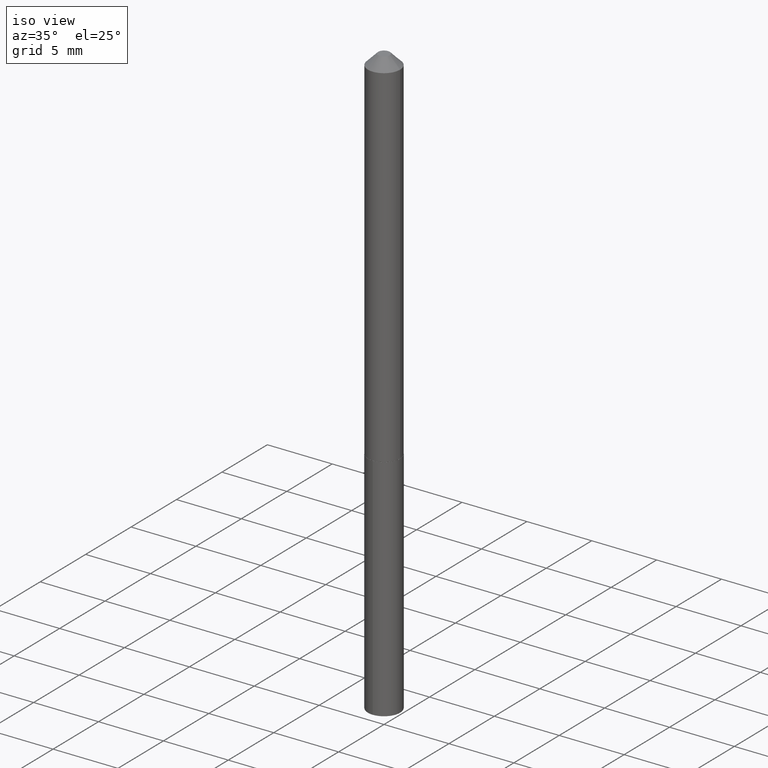
[diagram: clean part render]
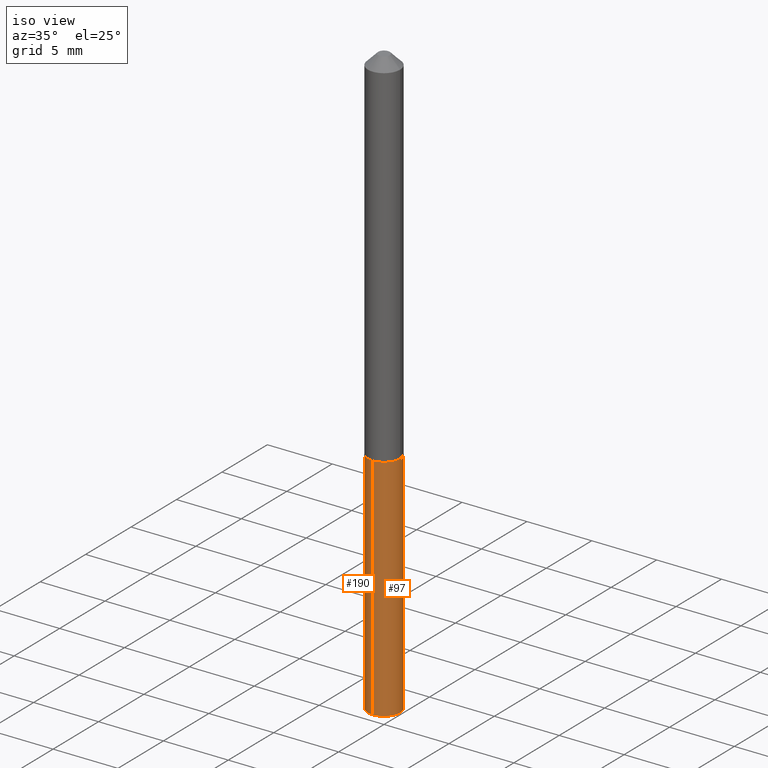
[diagram: same view with one multi-face feature highlighted, each face labeled with its STEP entity id]
A machine part, iso view. The highlighted faces form ONE feature: a constant-radius fillet chain: 2 tangent blend faces with common blend radius 1.2446 mm. The faces share edges in the B-rep.
Their STEP definitions:
[1] entity #97 (Cylinder):
#7 = LINE ( 'NONE', #257, #104 ) ;
#17 = CIRCLE ( 'NONE', #136, 0.04900000000000000189 ) ;
#56 = ORIENTED_EDGE ( 'NONE', *, *, #191, .T. ) ;
#58 = CYLINDRICAL_SURFACE ( 'NONE', #177, 0.04900000000000000189 ) ;
#61 = DIRECTION ( 'NONE',  ( -6.982962677686265922E-15, -1.000000000000000000, 5.575199987069924823E-15 ) ) ;
#63 = CARTESIAN_POINT ( 'NONE',  ( 4.388805033773031542E-29, -6.266031452726091394E-15, -1.794665458520956935 ) ) ;
#67 = AXIS2_PLACEMENT_3D ( 'NONE', #63, #155, #61 ) ;
#70 = CARTESIAN_POINT ( 'NONE',  ( -3.421651712065830464E-16, -0.04900000000000625383, -1.794665458520956491 ) ) ;
#77 = DIRECTION ( 'NONE',  ( -6.982962677686265922E-15, -1.000000000000000000, 2.787599993534962411E-15 ) ) ;
#78 = DIRECTION ( 'NONE',  ( -2.445478333601782701E-29, 3.491467695040241308E-15, 1.000000000000000000 ) ) ;
#93 = CIRCLE ( 'NONE', #67, 0.04900000000000000189 ) ;
#97 = ADVANCED_FACE ( 'NONE', ( #194 ), #58, .T. ) ;
#104 = VECTOR ( 'NONE', #372, 39.37007874015748143 ) ;
#121 = ORIENTED_EDGE ( 'NONE', *, *, #366, .F. ) ;
#136 = AXIS2_PLACEMENT_3D ( 'NONE', #326, #235, #329 ) ;
#142 = CARTESIAN_POINT ( 'NONE',  ( 3.481659405224759258E-16, 0.04899999999999617162, -1.098000000000000309 ) ) ;
#145 = ORIENTED_EDGE ( 'NONE', *, *, #249, .T. ) ;
#155 = DIRECTION ( 'NONE',  ( -2.445478333601782701E-29, 3.491467695040241308E-15, 1.000000000000000000 ) ) ;
#177 = AXIS2_PLACEMENT_3D ( 'NONE', #187, #264, #77 ) ;
#187 = CARTESIAN_POINT ( 'NONE',  ( 2.685124749191280284E-29, -3.833646510049774087E-15, -1.098000000000000087 ) ) ;
#191 = EDGE_CURVE ( 'NONE', #377, #221, #93, .T. ) ;
#194 = FACE_OUTER_BOUND ( 'NONE', #225, .T. ) ;
#221 = VERTEX_POINT ( 'NONE', #288 ) ;
#225 = EDGE_LOOP ( 'NONE', ( #56, #145, #367, #121 ) ) ;
#235 = DIRECTION ( 'NONE',  ( -2.445478333601782701E-29, 3.491467695040241308E-15, 1.000000000000000000 ) ) ;
#249 = EDGE_CURVE ( 'NONE', #221, #360, #355, .T. ) ;
#257 = CARTESIAN_POINT ( 'NONE',  ( -3.421651712066001549E-16, -0.04900000000000383216, -1.098000000000000087 ) ) ;
#264 = DIRECTION ( 'NONE',  ( -2.445478333601782701E-29, 3.491467695040241308E-15, 1.000000000000000000 ) ) ;
#270 = EDGE_CURVE ( 'NONE', #313, #360, #17, .T. ) ;
#288 = CARTESIAN_POINT ( 'NONE',  ( 3.481659405224928370E-16, 0.04899999999999372913, -1.794665458520957158 ) ) ;
#306 = VECTOR ( 'NONE', #78, 39.37007874015748143 ) ;
#313 = VERTEX_POINT ( 'NONE', #379 ) ;
#326 = CARTESIAN_POINT ( 'NONE',  ( 2.685124749191280284E-29, -3.833646510049774087E-15, -1.098000000000000087 ) ) ;
#329 = DIRECTION ( 'NONE',  ( -6.982962677686265922E-15, -1.000000000000000000, 2.787599993534962411E-15 ) ) ;
#343 = CARTESIAN_POINT ( 'NONE',  ( 3.481659405224930342E-16, 0.04899999999999615774, -1.098000000000000309 ) ) ;
#355 = LINE ( 'NONE', #142, #306 ) ;
#360 = VERTEX_POINT ( 'NONE', #343 ) ;
#366 = EDGE_CURVE ( 'NONE', #377, #313, #7, .T. ) ;
#367 = ORIENTED_EDGE ( 'NONE', *, *, #270, .F. ) ;
#372 = DIRECTION ( 'NONE',  ( -2.445478333601782701E-29, 3.491467695040241308E-15, 1.000000000000000000 ) ) ;
#377 = VERTEX_POINT ( 'NONE', #70 ) ;
#379 = CARTESIAN_POINT ( 'NONE',  ( -3.421651712066001549E-16, -0.04900000000000383216, -1.098000000000000087 ) ) ;
[2] entity #190 (Cylinder):
#7 = LINE ( 'NONE', #257, #104 ) ;
#18 = CYLINDRICAL_SURFACE ( 'NONE', #118, 0.04900000000000000189 ) ;
#51 = ORIENTED_EDGE ( 'NONE', *, *, #53, .F. ) ;
#53 = EDGE_CURVE ( 'NONE', #360, #313, #92, .T. ) ;
#70 = CARTESIAN_POINT ( 'NONE',  ( -3.421651712065830464E-16, -0.04900000000000625383, -1.794665458520956491 ) ) ;
#78 = DIRECTION ( 'NONE',  ( -2.445478333601782701E-29, 3.491467695040241308E-15, 1.000000000000000000 ) ) ;
#81 = CARTESIAN_POINT ( 'NONE',  ( 4.388805033773031542E-29, -6.266031452726091394E-15, -1.794665458520956935 ) ) ;
#92 = CIRCLE ( 'NONE', #236, 0.04900000000000000189 ) ;
#104 = VECTOR ( 'NONE', #372, 39.37007874015748143 ) ;
#118 = AXIS2_PLACEMENT_3D ( 'NONE', #262, #232, #369 ) ;
#132 = DIRECTION ( 'NONE',  ( -6.982962677686265922E-15, -1.000000000000000000, 5.575199987069924823E-15 ) ) ;
#142 = CARTESIAN_POINT ( 'NONE',  ( 3.481659405224759258E-16, 0.04899999999999617162, -1.098000000000000309 ) ) ;
#156 = EDGE_LOOP ( 'NONE', ( #378, #254, #280, #51 ) ) ;
#190 = ADVANCED_FACE ( 'NONE', ( #312 ), #18, .T. ) ;
#197 = DIRECTION ( 'NONE',  ( -2.445478333601782701E-29, 3.491467695040241308E-15, 1.000000000000000000 ) ) ;
#202 = DIRECTION ( 'NONE',  ( -2.445478333601782701E-29, 3.491467695040241308E-15, 1.000000000000000000 ) ) ;
#210 = DIRECTION ( 'NONE',  ( -6.982962677686265922E-15, -1.000000000000000000, 2.787599993534962411E-15 ) ) ;
#221 = VERTEX_POINT ( 'NONE', #288 ) ;
#232 = DIRECTION ( 'NONE',  ( -2.445478333601782701E-29, 3.491467695040241308E-15, 1.000000000000000000 ) ) ;
#236 = AXIS2_PLACEMENT_3D ( 'NONE', #349, #197, #210 ) ;
#249 = EDGE_CURVE ( 'NONE', #221, #360, #355, .T. ) ;
#251 = CIRCLE ( 'NONE', #330, 0.04900000000000000189 ) ;
#254 = ORIENTED_EDGE ( 'NONE', *, *, #268, .T. ) ;
#257 = CARTESIAN_POINT ( 'NONE',  ( -3.421651712066001549E-16, -0.04900000000000383216, -1.098000000000000087 ) ) ;
#262 = CARTESIAN_POINT ( 'NONE',  ( 2.685124749191280284E-29, -3.833646510049774087E-15, -1.098000000000000087 ) ) ;
#268 = EDGE_CURVE ( 'NONE', #221, #377, #251, .T. ) ;
#280 = ORIENTED_EDGE ( 'NONE', *, *, #366, .T. ) ;
#288 = CARTESIAN_POINT ( 'NONE',  ( 3.481659405224928370E-16, 0.04899999999999372913, -1.794665458520957158 ) ) ;
#306 = VECTOR ( 'NONE', #78, 39.37007874015748143 ) ;
#312 = FACE_OUTER_BOUND ( 'NONE', #156, .T. ) ;
#313 = VERTEX_POINT ( 'NONE', #379 ) ;
#330 = AXIS2_PLACEMENT_3D ( 'NONE', #81, #202, #132 ) ;
#343 = CARTESIAN_POINT ( 'NONE',  ( 3.481659405224930342E-16, 0.04899999999999615774, -1.098000000000000309 ) ) ;
#349 = CARTESIAN_POINT ( 'NONE',  ( 2.685124749191280284E-29, -3.833646510049774087E-15, -1.098000000000000087 ) ) ;
#355 = LINE ( 'NONE', #142, #306 ) ;
#360 = VERTEX_POINT ( 'NONE', #343 ) ;
#366 = EDGE_CURVE ( 'NONE', #377, #313, #7, .T. ) ;
#369 = DIRECTION ( 'NONE',  ( -6.982962677686265922E-15, -1.000000000000000000, 2.787599993534962411E-15 ) ) ;
#372 = DIRECTION ( 'NONE',  ( -2.445478333601782701E-29, 3.491467695040241308E-15, 1.000000000000000000 ) ) ;
#377 = VERTEX_POINT ( 'NONE', #70 ) ;
#378 = ORIENTED_EDGE ( 'NONE', *, *, #249, .F. ) ;
#379 = CARTESIAN_POINT ( 'NONE',  ( -3.421651712066001549E-16, -0.04900000000000383216, -1.098000000000000087 ) ) ;